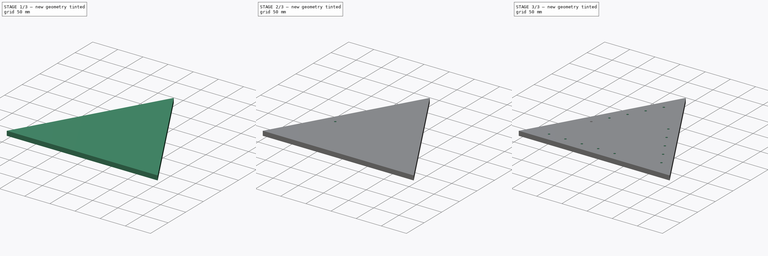
[diagram: build sequence overview — one tinted view per stage of 3, left to right]
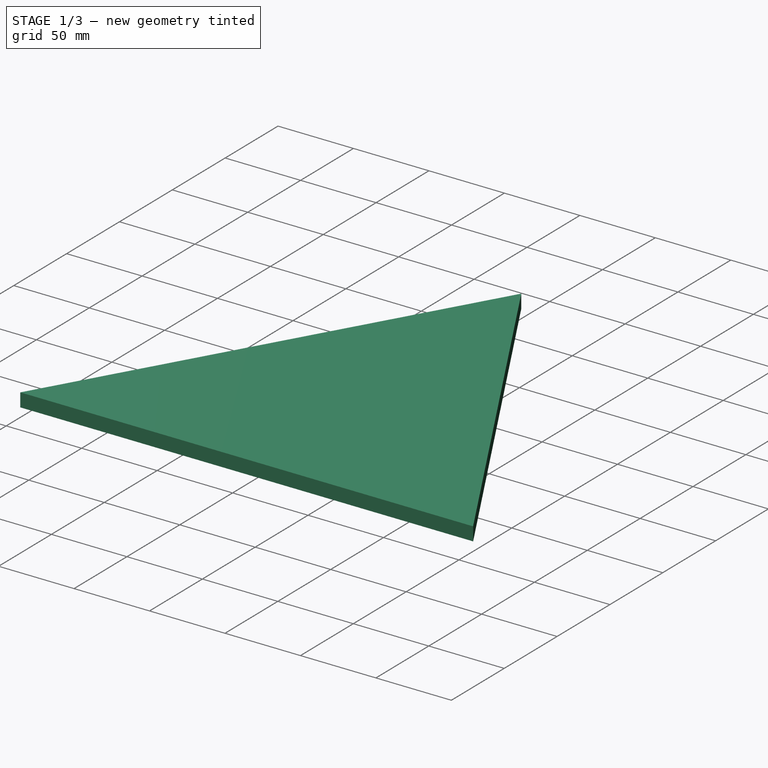
[diagram: stage 1 of 3 — iso view after this stage's code; geometry added in this stage tinted green]
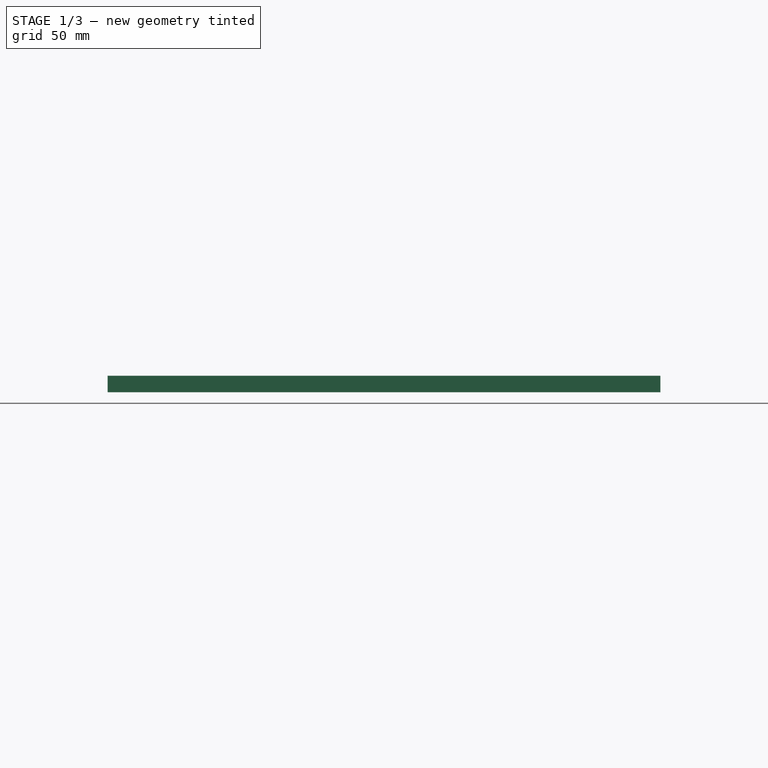
[diagram: stage 1 of 3 — front view after this stage's code; geometry added in this stage tinted green]
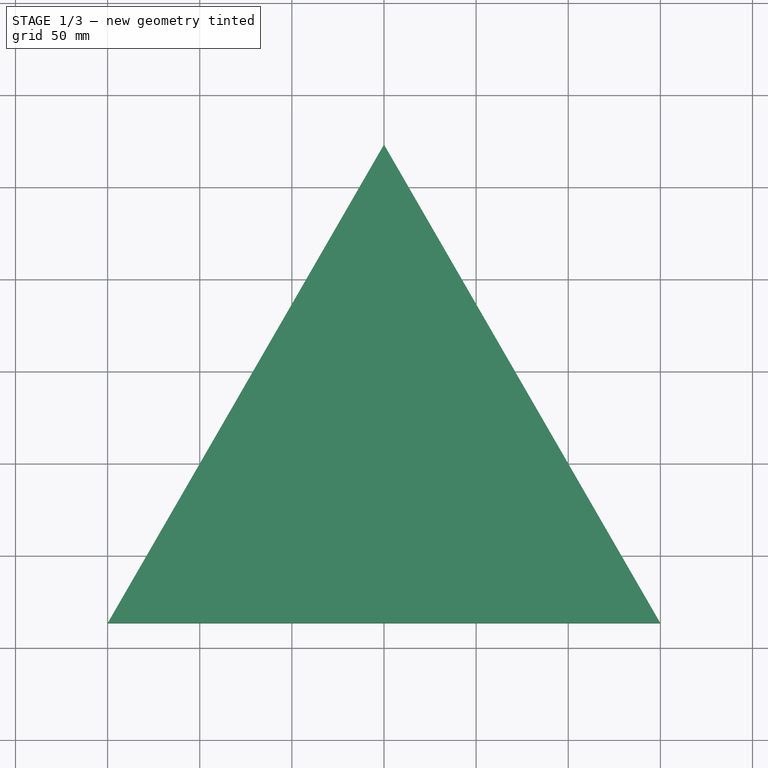
[diagram: stage 1 of 3 — top view after this stage's code; geometry added in this stage tinted green]
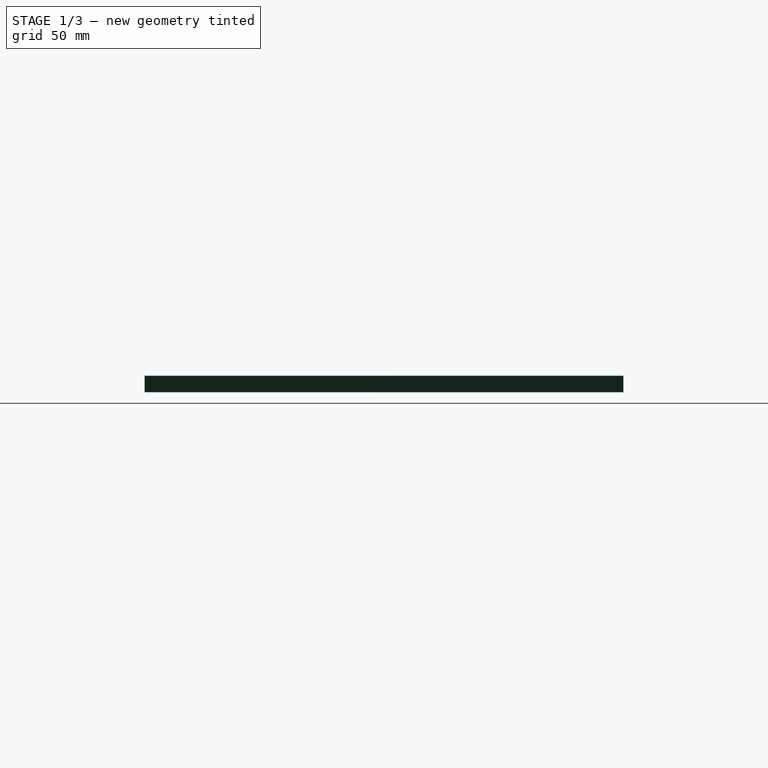
[diagram: stage 1 of 3 — right view after this stage's code; geometry added in this stage tinted green]
FCSTD DOCUMENT  (FreeCAD 1.0R39109 (Git))
Label: Blade_Assembly_FrontTriangle
Comment: Toggle visiblity of BladeTemplates & Rotor_Disk_Back for testing.
License: All rights reserved
LicenseURL: https://en.wikipedia.org/wiki/All_rights_reserved
objects: Sketcher::SketchObject×3, PartDesign::Pocket×2, PartDesign::LinearPattern×2, PartDesign::PolarPattern×2, PartDesign::MultiTransform×2, App::Link×2, Spreadsheet::Sheet×1, PartDesign::Pad×1, PartDesign::Line×1, PartDesign::Body×1, Part::FeaturePython×1
note: 29 computed .brp shape members not serialized (recipe doc carries the construction recipe); baked Part::Feature solids carry a one-line shape summary decoded from their .brp
EXTERNAL_REF file=../Master_of_Puppets.FCStd obj=Blade
EXTERNAL_REF file=../Master_of_Puppets.FCStd obj=Spreadsheet
EXTERNAL_REF file=Blade_Template.FCStd obj=Body
EXTERNAL_REF file=Blade_Assembly_BackDisk.FCStd obj=Body

FEATURE [Spreadsheet::Sheet] Spreadsheet
  cells = A1='Inputs; A2='Spreadsheet; A3='CalculatedWindTurbineShape; B3(CalculatedWindTurbineShape)==Master_of_Puppets#Spreadsheet.CalculatedWindTurbineShape; A4='Blade; A5='HubPitchCircleRadius; B5(HubPitchCircleRadius)==Master_of_Puppets#Blade.HubPitchCircleRadius; A6='HubHolesRadius; B6(HubHolesRadius)==Master_of_Puppets#Blade.HubHolesRadius; A7='BladeAssemblyPlateThickness; B7(BladeAssemblyPlateThickness)==Master_of_Puppets#Blade.BladeAssemblyPlateThickness; A8='BladeAssemblyFrontTriangleSideLength; B8(BladeAssemblyFrontTriangleSideLength)==Master_of_Puppets#Blade.BladeAssemblyFrontTriangleSideLength; A9='ScrewHoleRadius; B9(ScrewHoleRadius)==Master_of_Puppets#Blade.ScrewHoleRadius; A10='BladeTemplateDim_W; B10(BladeTemplateDim_W)==Master_of_Puppets#Blade.BladeTemplateDim_W; A11='BladeTemplateThickness; B11(BladeTemplateThickness)==Master_of_Puppets#Blade.BladeTemplateThickness; A12='DistanceFromCenter; B12(DistanceFromCenter)==Master_of_Puppets#Blade.DistanceFromCenter; A13='TriangleCenterToVertexDistance; B13(TriangleCenterToVertexDistance)==Master_of_Puppets#Blade.TriangleCenterToVertexDistance; A14='HideInnerScrews; B14(HideInnerScrews)==Master_of_Puppets#Blade.HideInnerScrews; A15='InnerScrewLineDistanceFromCenter; B15(InnerScrewLineDistanceFromCenter)==Master_of_Puppets#Blade.InnerScrewLineDistanceFromCenter; A16='OuterScrewLineDistanceFromCenter; B16(OuterScrewLineDistanceFromCenter)==Master_of_Puppets#Blade.OuterScrewLineDistanceFromCenter; A17='Alpha; B17(Alpha)==Master_of_Puppets#Blade.Alpha; A18='BladeTemplateTrailingEdgeAngle; B18(BladeTemplateTrailingEdgeAngle)==Master_of_Puppets#Blade.BladeTemplateTrailingEdgeAngle; A19='InnerScrewHypotenuseOffset; B19(InnerScrewHypotenuseOffset)==Master_of_Puppets#Blade.InnerScrewHypotenuseOffset; C19='OuterScrewHypotenuseOffset; D19(OuterScrewHypotenuseOffset)==Master_of_Puppets#Blade.OuterScrewHypotenuseOffset; A20='InnerScrewLineHypotenuse; B20(InnerScrewLineHypotenuse)==Master_of_Puppets#Blade.InnerScrewLineHypotenuse; C20='OuterScrewLineHypotenuse; D20(OuterScrewLineHypotenuse)==Master_of_Puppets#Blade.OuterScrewLineHypotenuse; A21='NumberOfInnerScrews; B21(NumberOfInnerScrews)==Master_of_Puppets#Blade.NumberOfInnerScrews; C21='NumberOfOuterScrews; D21(NumberOfOuterScrews)==Master_of_Puppets#Blade.NumberOfOuterScrews; A22='Calculated; A23='DistanceBetweenInnerScrews; B23(DistanceBetweenInnerScrews)==InnerScrewLineHypotenuse / (NumberOfInnerScrews + 1); C23='DistanceBetweenOuterScrews; D23(DistanceBetweenOuterScrews)==OuterScrewLineHypotenuse / (NumberOfOuterScrews + 1); A24='InnerScrewLineLength; B24(InnerScrewLineLength)==InnerScrewLineHypotenuse - DistanceBetweenInnerScrews * 2; C24='OuterScrewLineLength; D24(OuterScrewLineLength)==OuterScrewLineHypotenuse - DistanceBetweenOuterScrews * 2; A25='FirstInnerScrewOffset; B25(FirstInnerScrewOffset)==InnerScrewHypotenuseOffset + DistanceBetweenInnerScrews; C25='FirstOuterScrewOffset; D25(FirstOuterScrewOffset)==OuterScrewHypotenuseOffset + DistanceBetweenOuterScrews; A26='BladeTemplatesZ; B26(BladeTemplatesZ)==BladeAssemblyPlateThickness - BladeTemplateThickness; A27='BladeTemplateAngle; B27(BladeTemplateAngle)==90 deg - Alpha; A28='AngleToAlignWithBackDisk; A29='TShapeAngleToAlignWithBackDisk; B29(TShapeAngleToAlignWithBackDisk)==35 deg; A30='HShapeAngleToAlignWithBackDisk; B30(HShapeAngleToAlignWithBackDisk)==48 deg; A31='StarShapeAngleToAlignWithBackDisk; B31(StarShapeAngleToAlignWithBackDisk)==75 deg; A32='AngleToAlignWithBackDisk; B32(AngleToAlignWithBackDisk)==CalculatedWindTurbineShape == <<T>> ? TShapeAngleToAlignWithBackDisk : (CalculatedWindTurbineShape == <<H>> ? HShapeAngleToAlignWithBackDisk : StarShapeAngleToAlignWithBackDisk)
FEATURE [Sketcher::SketchObject] Sketch
  ArcFitTolerance = 0
  AttachmentSupport = -> [XY_Plane]
  FullyConstrained = true
  MakeInternals = false
  MapMode = 5
  expr: Constraints[10] = Spreadsheet.BladeAssemblyFrontTriangleSideLength
  sketch-geometry (4):
    g0: LineSegment StartX=0 StartY=173.205 StartZ=0 EndX=-150 EndY=-86.6025 EndZ=0
    g1: LineSegment StartX=-150 StartY=-86.6025 StartZ=0 EndX=150 EndY=-86.6025 EndZ=0
    g2: LineSegment StartX=150 StartY=-86.6025 StartZ=0 EndX=0 EndY=173.205 EndZ=0
    g3: Circle [constr] CenterX=0 CenterY=0 CenterZ=0 NormalX=0 NormalY=0 NormalZ=1 AngleXU=0 Radius=173.205
  constraints (11):
    c: Coincident(g0,g1)
    c: Coincident(g1,g2)
    c: Coincident(g2,g0)
    c: Equal(g0,g1)
    c: Equal(g0,g2)
    c: PointOnObject(g0,g3)
    c: PointOnObject(g1,g3)
    c: PointOnObject(g2,g3)
    c: Coincident(g3,g-1)
    c: PointOnObject(g2,g-2)
    c: Distance(g2) = 300
FEATURE [PartDesign::Pad] Pad
  Direction = (0,0,1)
  Length = 9
  Length2 = 10
  Profile = -> Sketch
  ReferenceAxis = -> Sketch [N_Axis]
  Suppressed = false
  Type = 0
  expr: Length = Spreadsheet.BladeAssemblyPlateThickness
FEATURE [Sketcher::SketchObject] Sketch001  label="InnerScrewHoleSketch"
  ArcFitTolerance = 0
  AttachmentOffset = pos=(0,0,9) rot=(0,0,1;0rad)
  AttachmentSupport = -> [XY_Plane]
  FullyConstrained = true
  MakeInternals = false
  MapMode = 5
  Placement = pos=(0,0,9) rot=(0,0,1;0rad)
  expr: .AttachmentOffset.Base.z = Spreadsheet.BladeAssemblyPlateThickness
  expr: Constraints[10] = Spreadsheet.TriangleCenterToVertexDistance
  expr: Constraints[12] = Spreadsheet.ScrewHoleRadius
  expr: Constraints[17] = Spreadsheet.InnerScrewLineDistanceFromCenter
  expr: Constraints[21] = Spreadsheet.FirstInnerScrewOffset
  expr: Constraints[23] = Spreadsheet.BladeTemplateTrailingEdgeAngle
  expr: Constraints[5] = Spreadsheet.BladeTemplateDim_W * 2
  expr: Constraints[6] = Spreadsheet.DistanceFromCenter
  sketch-geometry (9):
    g0: LineSegment [constr] StartX=0 StartY=0 StartZ=0 EndX=-71.9362 EndY=-21.2176 EndZ=0
    g1: LineSegment [constr] StartX=0 StartY=0 StartZ=0 EndX=22.9883 EndY=95.2656 EndZ=0
    g2: LineSegment [constr] StartX=22.9883 StartY=95.2656 StartZ=0 EndX=0 EndY=173.205 EndZ=0
    g3: LineSegment [constr] StartX=-71.9362 StartY=-21.2176 StartZ=0 EndX=-106.984 EndY=141.65 EndZ=0
    g4: LineSegment [constr] StartX=-106.984 StartY=141.65 StartZ=0 EndX=0 EndY=173.205 EndZ=0
    g5: LineSegment [constr] StartX=0 StartY=173.205 StartZ=0 EndX=0 EndY=0 EndZ=0
    g6: LineSegment [constr] StartX=-69.5846 StartY=-20.524 StartZ=0 EndX=14.291 EndY=124.753 EndZ=0
    g7: Circle CenterX=-52.8095 CenterY=8.53135 CenterZ=0 NormalX=0 NormalY=0 NormalZ=1 AngleXU=0 Radius=2
    g8: LineSegment [constr] StartX=0 StartY=0 StartZ=0 EndX=-43.3013 EndY=25 EndZ=0
  constraints (26):
    c: Coincident(g1,g0)
    c: Coincident(g2,g1)
    c: PointOnObject(g2,g-2)
    c: Coincident(g3,g0)
    c: Angle(g1,g0) = 2.0944
    c: Distance(g1) = 98
    c: Distance(g0) = 75
    c: Coincident(g4,g3)
    c: Coincident(g4,g2)
    c: Coincident(g5,g2)
    c: Distance(g5) = 173.205
    c: PointOnObject(g7,g6)
    c: Radius(g7) = 2
    c: PointOnObject(g8,g6)
    c: Perpendicular(g6,g8)
    c: Angle(g5,g8) = 1.0472
    c: Coincident(g0,g8)
    c: Distance(g8) = 50
    c: Coincident(g-1,g0)
    c: Coincident(g-1,g5)
    c: PointOnObject(g6,g2)
    c: Distance(g7,g6) = 33.5502
    c: Angle(g2,g1) = 2.61799
    c: Angle(g0,g3) = 1.49594
    c: Parallel(g0,g4)
    c: PointOnObject(g6,g0)
FEATURE [PartDesign::Pocket] Pocket  label="InnerScrewHolePocket"
  BaseFeature = -> Pad
  Direction = (0,0,-1)
  Length = 0
  Length2 = 1
  Profile = -> Sketch001
  ReferenceAxis = -> Sketch001 [N_Axis]
  Suppressed = true
  Type = 1
  expr: Suppressed = Spreadsheet.HideInnerScrews
FEATURE [PartDesign::Line] DatumLine
  AttacherType = Attacher::AttachEngineLine
  AttachmentOffset = pos=(0,9,0) rot=(0,1,0;1.0472rad)
  AttachmentSupport = -> [XY_Plane]
  Length = 20
  MapMode = 16
  Placement = pos=(0,0,9) rot=(0.186157,0.694747,0.694747;2.77349rad)
  ResizeMode = 0
  expr: .AttachmentOffset.Base.y = Spreadsheet.BladeAssemblyPlateThickness
FEATURE [Sketcher::SketchObject] Sketch002  label="OuterScrewHoleSketch"
  ArcFitTolerance = 0
  AttachmentOffset = pos=(0,0,9) rot=(0,0,1;0rad)
  AttachmentSupport = -> [XY_Plane]
  FullyConstrained = true
  MakeInternals = false
  MapMode = 5
  Placement = pos=(0,0,9) rot=(0,0,1;0rad)
  expr: .AttachmentOffset.Base.z = Spreadsheet.BladeAssemblyPlateThickness
  expr: Constraints[10] = Spreadsheet.TriangleCenterToVertexDistance
  expr: Constraints[15] = Spreadsheet.ScrewHoleRadius
  expr: Constraints[17] = Spreadsheet.OuterScrewLineDistanceFromCenter
  expr: Constraints[21] = Spreadsheet.FirstOuterScrewOffset
  expr: Constraints[23] = Spreadsheet.BladeTemplateTrailingEdgeAngle
  expr: Constraints[5] = Spreadsheet.BladeTemplateDim_W * 2
  expr: Constraints[6] = Spreadsheet.DistanceFromCenter
  sketch-geometry (9):
    g0: LineSegment [constr] StartX=0 StartY=0 StartZ=0 EndX=-71.9362 EndY=-21.2176 EndZ=0
    g1: LineSegment [constr] StartX=0 StartY=0 StartZ=0 EndX=22.9883 EndY=95.2656 EndZ=0
    g2: LineSegment [constr] StartX=22.9883 StartY=95.2656 StartZ=0 EndX=0 EndY=173.205 EndZ=0
    g3: LineSegment [constr] StartX=-71.9362 StartY=-21.2176 StartZ=0 EndX=-106.984 EndY=141.65 EndZ=0
    g4: LineSegment [constr] StartX=-106.984 StartY=141.65 StartZ=0 EndX=0 EndY=173.205 EndZ=0
    g5: LineSegment [constr] StartX=0 StartY=173.205 StartZ=0 EndX=0 EndY=0 EndZ=0
    g6: LineSegment [constr] StartX=0 StartY=0 StartZ=0 EndX=-60.6123 EndY=33.5979 EndZ=0
    g7: LineSegment [constr] StartX=-94.7224 StartY=-27.9384 StartZ=0 EndX=5.82541 EndY=153.455 EndZ=0
    g8: Circle CenterX=-73.6164 CenterY=10.1378 CenterZ=0 NormalX=0 NormalY=0 NormalZ=1 AngleXU=0 Radius=2
  constraints (26):
    c: Coincident(g1,g0)
    c: Coincident(g2,g1)
    c: PointOnObject(g2,g-2)
    c: Coincident(g3,g0)
    c: Angle(g1,g0) = 2.0944
    c: Distance(g1) = 98
    c: Distance(g0) = 75
    c: Coincident(g4,g3)
    c: Coincident(g4,g2)
    c: Coincident(g5,g2)
    c: Distance(g5) = 173.205
    c: Coincident(g5,g6)
    c: Angle(g-2,g6) = 1.06465
    c: Perpendicular(g6,g7)
    c: PointOnObject(g8,g7)
    c: Radius(g8) = 2
    c: PointOnObject(g6,g7)
    c: Distance(g6) = 69.3013
    c: Coincident(g5,g0)
    c: Coincident(g5,g-1)
    c: PointOnObject(g7,g2)
    c: Distance(g8,g7) = 43.5347
    c: Angle(g2,g1) = 2.61799
    c: Angle(g0,g3) = 1.49594
    c: Parallel(g4,g0)
    c: PointOnObject(g7,g0)
FEATURE [PartDesign::Pocket] Pocket001  label="OuterScrewHolePocket"
  BaseFeature = -> Pocket
  Direction = (0,0,-1)
  Length = 5
  Length2 = 5
  Profile = -> Sketch002
  ReferenceAxis = -> Sketch002 [N_Axis]
  Suppressed = false
  Type = 1
FEATURE [PartDesign::LinearPattern] LinearPattern
  Direction = -> DatumLine
  Length = 130.294
  Mode = 0
  Occurrences = 5
  Offset = 32.5735
  Suppressed = false
  TransformMode = 0
  expr: Length = Spreadsheet.OuterScrewLineLength
  expr: Occurrences = Spreadsheet.NumberOfOuterScrews
FEATURE [PartDesign::PolarPattern] PolarPattern
  Angle = 360
  Axis = -> Sketch002 [N_Axis]
  Mode = 0
  Occurrences = 3
  Offset = 120
  Suppressed = false
  TransformMode = 0
FEATURE [PartDesign::MultiTransform] MultiTransform  label="OuterScrewHoleMultiTransform"
  BaseFeature = -> Pocket001
  Originals = -> [Pocket001]
  Suppressed = false
  TransformMode = 0
  Transformations = -> [LinearPattern,PolarPattern]
FEATURE [PartDesign::LinearPattern] LinearPattern001
  Direction = -> DatumLine
  Length = 100.651
  Mode = 0
  Occurrences = 4
  Offset = 33.5502
  Suppressed = false
  TransformMode = 0
  expr: Length = Spreadsheet.InnerScrewLineLength
  expr: Occurrences = Spreadsheet.NumberOfInnerScrews
FEATURE [PartDesign::PolarPattern] PolarPattern001
  Angle = 360
  Axis = -> Sketch001 [N_Axis]
  Mode = 0
  Occurrences = 3
  Offset = 120
  Suppressed = false
  TransformMode = 0
FEATURE [PartDesign::MultiTransform] MultiTransform001  label="InnerHoleScrewHoleMultiTransform"
  BaseFeature = -> MultiTransform
  Originals = -> [Pocket]
  Suppressed = true
  TransformMode = 0
  Transformations = -> [LinearPattern001,PolarPattern001]
  expr: Suppressed = Spreadsheet.HideInnerScrews
FEATURE [PartDesign::Body] Body  label="Blade_Assembly_FrontTriangle"
  AllowCompound = false
  Group = -> [Sketch,Pad,Sketch001,Pocket,DatumLine,Sketch002,Pocket001,MultiTransform,LinearPattern,PolarPattern,MultiTransform001,LinearPattern001,PolarPattern001]
  Openafpm_Flat = true
  Origin = -> Origin
  Placement = pos=(0,0,0) rot=(0,0,-1;0.610865rad)
  Tip = -> MultiTransform001
  expr: .Placement.Rotation.Angle = Spreadsheet.AngleToAlignWithBackDisk
FEATURE [App::Link] Link001  label="Blade_Template"
  LinkPlacement = pos=(0,0,0) rot=(0,0,1;0.286818rad)
  LinkedObject = -> <external Blade_Template.FCStd>#Body
  Placement = pos=(0,0,0) rot=(0,0,1;0.286818rad)
  expr: .Placement.Rotation.Angle = Spreadsheet.BladeTemplateAngle
FEATURE [Part::FeaturePython] Array  label="BladeTemplates"  # Draft array (typed FeaturePython)
  AlwaysSyncPlacement = false
  Angle = 360
  ArrayType = 1
  Axis = (0,0,1)
  Base = -> Link001
  Center = (0,0,0)
  Count = 3
  ExpandArray = false
  Fuse = false
  IntervalAxis = (0,0,0)
  IntervalX = (50,0,0)
  IntervalY = (0,50,0)
  IntervalZ = (0,0,50)
  NumberCircles = 3
  NumberPolar = 3
  NumberX = 2
  NumberY = 2
  NumberZ = 1
  Placement = pos=(0,0,3) rot=(0,0,1;0rad)
  PlacementList = 3 placements: [(0,0,0),(0,0,0),(0,0,0)]
  RadialDistance = 50
  ScaleList = (3) [(1,1,1),(1,1,1),(1,1,1)]
  Symmetry = 1
  TangentialDistance = 25
  expr: .Placement.Base.z = Spreadsheet.BladeAssemblyPlateThickness - 6
FEATURE [App::Link] Link002  label="Blade_Assembly_BackDisk"
  LinkedObject = -> <external Blade_Assembly_BackDisk.FCStd>#Body

RESOLVED EXTERNAL PARTS (link-assembly join: the EXTERNAL_REF files above that resolve inside this repo's crawl, each included once):
---- part ../Master_of_Puppets.FCStd = doc fcstd_6404554055c4 (61625 chars; too large to inline — full recipe in that document) ----
---- part Blade_Assembly_BackDisk.FCStd = doc fcstd_c4c851f2121e ----
FCSTD DOCUMENT  (FreeCAD 1.0R39109 (Git))
Label: Blade_Assembly_BackDisk
Comment: Toggle visibility of WoodBoardsAndBladeTemplates and tranparency of Blade_Assembly_BackDisk and Blade_Template for testing.
License: All rights reserved
LicenseURL: https://en.wikipedia.org/wiki/All_rights_reserved
objects: PartDesign::PolarPattern×5, Sketcher::SketchObject×4, PartDesign::Pocket×3, PartDesign::MultiTransform×2, Spreadsheet::Sheet×1, PartDesign::Pad×1, PartDesign::Body×1, App::Link×1, Part::Box×1, App::Part×1, Part::FeaturePython×1
note: 36 computed .brp shape members not serialized (recipe doc carries the construction recipe); baked Part::Feature solids carry a one-line shape summary decoded from their .brp
EXTERNAL_REF file=../Master_of_Puppets.FCStd obj=Alternator
EXTERNAL_REF file=../Master_of_Puppets.FCStd obj=Blade
EXTERNAL_REF file=../Master_of_Puppets.FCStd obj=Hub
EXTERNAL_REF file=../Master_of_Puppets.FCStd obj=Spreadsheet
EXTERNAL_REF file=Blade_Template.FCStd obj=Body

FEATURE [Spreadsheet::Sheet] Spreadsheet
  cells = A1='Inputs; A2='CalculatedWindTurbineShape; B2(CalculatedWindTurbineShape)==Master_of_Puppets#Spreadsheet.CalculatedWindTurbineShape; A3='BladeAssemblyPlateThickness; B3(BladeAssemblyPlateThickness)==Master_of_Puppets#Blade.BladeAssemblyPlateThickness; A4='BladeAssemblyBackDiskDiameter; B4(BladeAssemblyBackDiskDiameter)==Master_of_Puppets#Blade.BladeAssemblyBackDiskDiameter; A5='HubPitchCircleRadius; B5(HubPitchCircleRadius)==Master_of_Puppets#Hub.HubPitchCircleRadius; A6='HubHolesRadius; B6(HubHolesRadius)==Master_of_Puppets#Hub.HubHolesRadius; A7='NumberOfHoles; B7(NumberOfHoles)==Master_of_Puppets#Hub.NumberOfHoles; A8='ScrewHoleRadius; B8(ScrewHoleRadius)==Master_of_Puppets#Alternator.ScrewHoleRadius; A9='NumberOfBackDiskScrewsPerBlade; B9(NumberOfBackDiskScrewsPerBlade)==Master_of_Puppets#Blade.NumberOfBackDiskScrewsPerBlade; A10='BladeTemplateThickness; B10(BladeTemplateThickness)==Master_of_Puppets#Blade.BladeTemplateThickness; A11='RotorTopology; B11(RotorTopology)==Master_of_Puppets#Spreadsheet.RotorTopology; A12='BladeWidth; B12(BladeWidth)==Master_of_Puppets#Spreadsheet.BladeWidth; A13='BladeTemplateDim_W; B13(BladeTemplateDim_W)==Master_of_Puppets#Blade.BladeTemplateDim_W; A14='BladeRadius; B14(BladeRadius)==Master_of_Puppets#Blade.BladeRadius; A15='Static; A16='BladeAssemblyBackDiskCentralHoleDiameter; B16(BladeAssemblyBackDiskCentralHoleDiameter)==RotorTopology == <<Single>> ? ScrewHoleRadius * 2 : 12; C16='Central hole is to see if the blades touch in the center during the assembly.; A17='Calculated; A18='NumberOfInnerScrews; B18(NumberOfInnerScrews)==round(NumberOfBackDiskScrewsPerBlade * 0.43); A19='NumberOfOuterScrews; B19(NumberOfOuterScrews)==NumberOfBackDiskScrewsPerBlade - NumberOfInnerScrews; A20='TShapeAngleOffset; B20(TShapeAngleOffset)==45 deg; A21='HShapeAngleOffset; B21(HShapeAngleOffset)==270 deg; A22='StarShapeAngleOffset; B22(StarShapeAngleOffset)==0 deg; A23='AngleOffset; B23(AngleOffset)==CalculatedWindTurbineShape == <<T>> ? TShapeAngleOffset : (CalculatedWindTurbineShape == <<H>> ? HShapeAngleOffset : StarShapeAngleOffset); A24='BladeAssemblyBackDiskCentralHoleRadius; B24(BladeAssemblyBackDiskCentralHoleRadius)==BladeAssemblyBackDiskCentralHoleDiameter / 2; A25='BladeAssemblyBackDiskRadius; B25(BladeAssemblyBackDiskRadius)==BladeAssemblyBackDiskDiameter / 2; A26='DistanceBetweenScrewHolesCircumradii; B26(DistanceBetweenScrewHolesCircumradii)==(BladeAssemblyBackDiskRadius - ScrewHoleRadius - (HubPitchCircleRadius + HubHolesRadius)) / 3; A27='InnerScrewHolesCircumradius; B27(InnerScrewHolesCircumradius)==HubPitchCircleRadius + HubHolesRadius + DistanceBetweenScrewHolesCircumradii; A28='OuterScrewHolesCircumradius; B28(OuterScrewHolesCircumradius)==InnerScrewHolesCircumradius + ScrewHoleRadius + DistanceBetweenScrewHolesCircumradii; A29='BladeAngle; B29(BladeAngle)==120 deg; C29='Assume 3 blades; A30='AngleBetweenInnerScrewHoles; B30(AngleBetweenInnerScrewHoles)==BladeAngle / (NumberOfInnerScrews + 1); A31='AngleBetweenOuterScrewHoles; B31(AngleBetweenOuterScrewHoles)==BladeAngle / (NumberOfOuterScrews + 1); A32='BladeTemplateAngle; A33='TShapeBladeTemplateAngle; B33(TShapeBladeTemplateAngle)==-15 deg; A34='HShapeBladeTemplateAngle; B34(HShapeBladeTemplateAngle)==-30 deg; A35='StarShapeBladeTemplateAngle; B35(StarShapeBladeTemplateAngle)==-60 deg; A36='BladeTemplateAngle; B36(BladeTemplateAngle)==CalculatedWindTurbineShape == <<T>> ? TShapeBladeTemplateAngle : (CalculatedWindTurbineShape == <<H>> ? HShapeBladeTemplateAngle : StarShapeBladeTemplateAngle); A37='Z; A38='BladeTemplateZ; B38(BladeTemplateZ)==-BladeTemplateThickness; A39='WoodZ; B39(WoodZ)==BladeTemplateZ - BladeAssemblyPlateThickness; A40='Decrease number of screws to handle when blade width is less than the maximum; A41='RootAngle; B41(RootAngle)==60 deg; A42='WoodX; B42(WoodX)==BladeTemplateDim_W - BladeWidth; A43='DistanceOfScrewEdge; B43(DistanceOfScrewEdge)=20; A44='ScrewBoundaryX; B44(ScrewBoundaryX)==WoodX + DistanceOfScrewEdge; A45='WoodYOuterScrewHolesCircumradiusIntersection; B45(WoodYOuterScrewHolesCircumradiusIntersection)==sqrt(OuterScrewHolesCircumradius ^ 2 - ScrewBoundaryX ^ 2); C45='WoodYInnerScrewHolesCircumradiusIntersection; D45(WoodYInnerScrewHolesCircumradiusIntersection)==sqrt(InnerScrewHolesCircumradius ^ 2 - ScrewBoundaryX ^ 2); A46='WoodOuterScrewHolesCircumradiusIntersectionAngle; B46(WoodOuterScrewHolesCircumradiusIntersectionAngle)==ScrewBoundaryX < -OuterScrewHolesCircumradius ? BladeAngle : 180 deg + atan(WoodYOuterScrewHolesCircumradiusIntersection / WoodX) - RootAngle; C46='WoodInnerScrewHolesCircumradiusIntersectionAngle; D46(WoodInnerScrewHolesCircumradiusIntersectionAngle)==ScrewBoundaryX < -InnerScrewHolesCircumradius ? BladeAngle : 180 deg + atan(WoodYInnerScrewHolesCircumradiusIntersection / WoodX) - RootAngle; A47='AngleBetweenOuterScrewHolesAdjustedForBladeWidth; B47(AngleBetweenOuterScrewHolesAdjustedForBladeWidth)==WoodOuterScrewHolesCircumradiusIntersectionAngle / (NumberOfOuterScrews + 1); C47='AngleBetweenInnerScrewHolesAdjustedForBladeWidth; D47(AngleBetweenInnerScrewHolesAdjustedForBladeWidth)==WoodInnerScrewHolesCircumradiusIntersectionAngle / (NumberOfInnerScrews + 1); A48='OuterScrewsAngleAdjustedForBladeWidth; B48(OuterScrewsAngleAdjustedForBladeWidth)==AngleBetweenOuterScrewHolesAdjustedForBladeWidth * (NumberOfOuterScrews - 1); C48='InnerScrewsAngleAdjustedForBladeWidth; D48(InnerScrewsAngleAdjustedForBladeWidth)==AngleBetweenInnerScrewHolesAdjustedForBladeWidth * (NumberOfInnerScrews - 1)
FEATURE [Sketcher::SketchObject] Sketch
  ArcFitTolerance = 0
  AttachmentSupport = -> [XY_Plane]
  FullyConstrained = true
  MakeInternals = false
  MapMode = 5
  expr: Constraints[2] = Spreadsheet.BladeAssemblyBackDiskCentralHoleRadius
  expr: Constraints[3] = Spreadsheet.BladeAssemblyBackDiskRadius
  sketch-geometry (2):
    g0: Circle CenterX=0 CenterY=0 CenterZ=0 NormalX=0 NormalY=0 NormalZ=1 AngleXU=0 Radius=125.5
    g1: Circle CenterX=0 CenterY=0 CenterZ=0 NormalX=0 NormalY=0 NormalZ=1 AngleXU=0 Radius=6
  constraints (4):
    c: Coincident(g0,g-1)
    c: Coincident(g1,g0)
    c: Radius(g1) = 6
    c: Radius(g0) = 125.5
FEATURE [PartDesign::Pad] Pad
  Direction = (0,0,1)
  Length = 12
  Length2 = 10
  Profile = -> Sketch
  ReferenceAxis = -> Sketch [N_Axis]
  Suppressed = false
  Type = 0
  expr: Length = Spreadsheet.BladeAssemblyPlateThickness
FEATURE [Sketcher::SketchObject] Sketch001  label="HubHoleSketch"
  ArcFitTolerance = 0
  AttachmentSupport = -> [XY_Plane]
  FullyConstrained = true
  MakeInternals = false
  MapMode = 5
  Placement = pos=(0,0,0) rot=(0,1,0;3.14159rad)
  expr: Constraints[1] = Spreadsheet.HubHolesRadius
  expr: Constraints[2] = Spreadsheet.HubPitchCircleRadius
  sketch-geometry (1):
    g0: Circle CenterX=0 CenterY=50 CenterZ=0 NormalX=0 NormalY=0 NormalZ=1 AngleXU=0 Radius=6
  constraints (3):
    c: PointOnObject(g0,g-2)
    c: Radius(g0) = 6
    c: DistanceY(g-1,g0) = 50
FEATURE [PartDesign::Pocket] Pocket  label="HubHolePocket"
  BaseFeature = -> Pad
  Direction = (0,0,1)
  Length = 5
  Length2 = 5
  Profile = -> Sketch001
  ReferenceAxis = -> Sketch001 [N_Axis]
  Suppressed = false
  Type = 1
FEATURE [PartDesign::Body] Body  label="Blade_Assembly_BackDisk"
  AllowCompound = false
  Group = -> [Sketch,Pad,Sketch001,Pocket,PolarPattern,Sketch003,Pocket001,Sketch004,Pocket002,MultiTransform,PolarPattern002,PolarPattern003,MultiTransform001,PolarPattern004,PolarPattern005]
  Openafpm_Flat = true
  Origin = -> Origin
  Tip = -> MultiTransform001
FEATURE [App::Link] Link  label="Blade_Template"
  LinkPlacement = pos=(0,0,-6) rot=(0,0,1;0rad)
  LinkedObject = -> <external Blade_Template.FCStd>#Body
  Placement = pos=(0,0,-6) rot=(0,0,1;0rad)
  expr: .Placement.Base.z = Spreadsheet.BladeTemplateZ
FEATURE [Part::Box] Box  label="Wood"
  AttacherType = Attacher::AttachEngine3D
  Height = 12
  Length = 160
  Placement = pos=(-104,0,-18) rot=(0,0,1;0rad)
  Width = 1200
  expr: .Placement.Base.x = Spreadsheet.WoodX
  expr: .Placement.Base.z = Spreadsheet.WoodZ
  expr: Height = Spreadsheet.BladeAssemblyPlateThickness
  expr: Length = Spreadsheet.BladeWidth
  expr: Width = Spreadsheet.BladeRadius
FEATURE [App::Part] Part
  Group = -> [Box,Link]
  Origin = -> Origin001
  Placement = pos=(0,0,0) rot=(0,0,1;-0.261799rad)
  expr: .Placement.Rotation.Angle = Spreadsheet.BladeTemplateAngle
FEATURE [Part::FeaturePython] Array  label="WoodBoardsAndBladeTemplates"  # Draft array (typed FeaturePython)
  AlwaysSyncPlacement = false
  Angle = 360
  ArrayType = 1
  Axis = (0,0,1)
  Base = -> Part
  Center = (0,0,0)
  Count = 3
  ExpandArray = false
  Fuse = false
  IntervalAxis = (0,0,0)
  IntervalX = (50,0,0)
  IntervalY = (0,50,0)
  IntervalZ = (0,0,50)
  NumberCircles = 3
  NumberPolar = 3
  NumberX = 2
  NumberY = 2
  NumberZ = 1
  PlacementList = 3 placements: [(0,0,0),(0,0,0),(0,0,0)]
  RadialDistance = 50
  ScaleList = (3) [(1,1,1),(1,1,1),(1,1,1)]
  Symmetry = 1
  TangentialDistance = 25
---- part Blade_Template.FCStd = doc fcstd_a136995ec3d8 ----
FCSTD DOCUMENT  (FreeCAD 0.21R33771 (Git))
Label: Blade_Template
License: All rights reserved
LicenseURL: https://en.wikipedia.org/wiki/All_rights_reserved
objects: Spreadsheet::Sheet×1, Sketcher::SketchObject×1, PartDesign::Pad×1, PartDesign::Body×1
note: 4 computed .brp shape members not serialized (recipe doc carries the construction recipe); baked Part::Feature solids carry a one-line shape summary decoded from their .brp
EXTERNAL_REF file=../Master_of_Puppets.FCStd obj=Blade

FEATURE [Spreadsheet::Sheet] Spreadsheet
  cells = A1='Inputs; A2='BladeRadius; B2(BladeRadius)==Master_of_Puppets#Blade.BladeRadius; A3='BladeTemplateDim_V; B3(BladeTemplateDim_V)==Master_of_Puppets#Blade.BladeTemplateDim_V; A4='BladeTemplateDim_W; B4(BladeTemplateDim_W)==Master_of_Puppets#Blade.BladeTemplateDim_W; A5='BladeTemplateThickness; B5(BladeTemplateThickness)==Master_of_Puppets#Blade.BladeTemplateThickness
FEATURE [Sketcher::SketchObject] Sketch
  FullyConstrained = true
  MapMode = 5
  Support = -> [XY_Plane]
  expr: Constraints[12] = Spreadsheet.BladeTemplateDim_V
  expr: Constraints[5] = Spreadsheet.BladeTemplateDim_W
  expr: Constraints[6] = Spreadsheet.BladeRadius
  expr: Constraints[7] = Spreadsheet.BladeTemplateDim_W
  sketch-geometry (5):
    g0: LineSegment StartX=0 StartY=0 StartZ=0 EndX=35 EndY=60.6218 EndZ=0
    g1: LineSegment StartX=35 StartY=60.6218 StartZ=0 EndX=35 EndY=600 EndZ=0
    g2: LineSegment StartX=35 StartY=600 StartZ=0 EndX=0 EndY=600 EndZ=0
    g3: LineSegment StartX=0 StartY=600 StartZ=0 EndX=-105 EndY=0 EndZ=0
    g4: LineSegment StartX=-105 StartY=0 StartZ=0 EndX=0 EndY=0 EndZ=0
  constraints (14):
    c: Coincident(g0,g1)
    c: Vertical(g1)
    c: Coincident(g1,g2)
    c: Horizontal(g2)
    c: Coincident(g2,g3)
    c: DistanceX(g2,g1) = 35
    c: DistanceY(g0,g1) = 600
    c: DistanceX(g0,g0) = 35
    c: Coincident(g4,g3)
    c: Coincident(g4,g0)
    c: Horizontal(g4)
    c: Coincident(g0,g-1)
    c: DistanceX(g3,g0) = 140
    c: Angle(g0,g4) = 2.0944
FEATURE [PartDesign::Pad] Pad
  Direction = (0,0,1)
  Length = 6
  Length2 = 10
  Profile = -> Sketch
  ReferenceAxis = -> Sketch [N_Axis]
  Type = 0
  expr: Length = Spreadsheet.BladeTemplateThickness
FEATURE [PartDesign::Body] Body  label="Blade_Template"
  Group = -> [Sketch,Pad]
  Openafpm_Flat = true
  Origin = -> Origin
  Tip = -> Pad
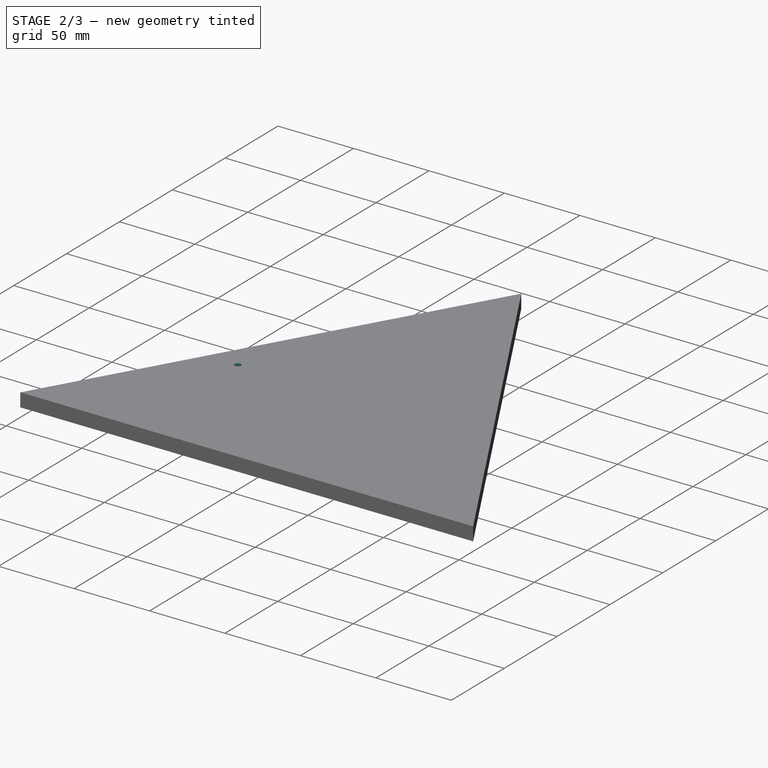
[diagram: stage 2 of 3 — iso view after this stage's code; geometry added in this stage tinted green]
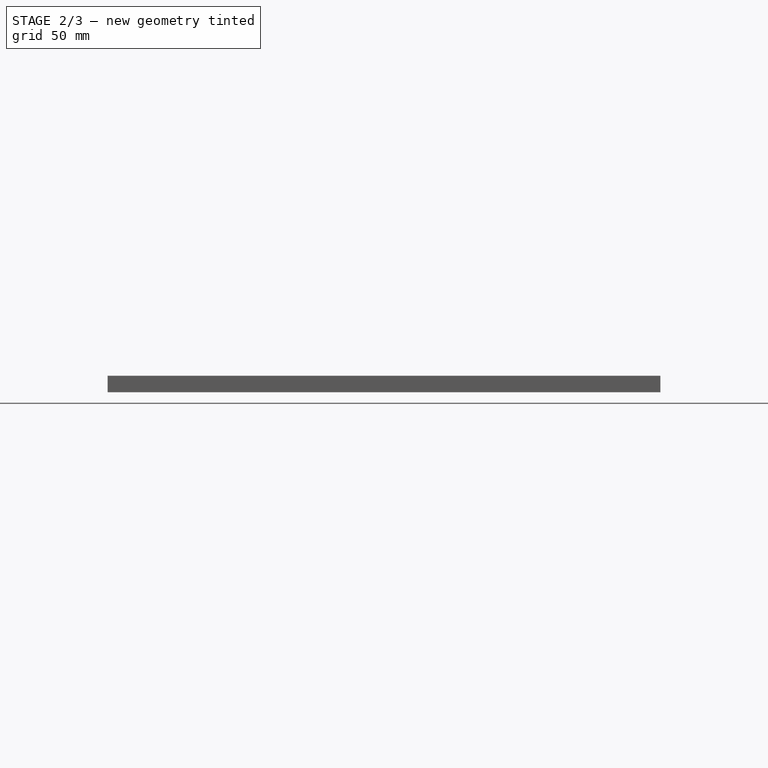
[diagram: stage 2 of 3 — front view after this stage's code; geometry added in this stage tinted green]
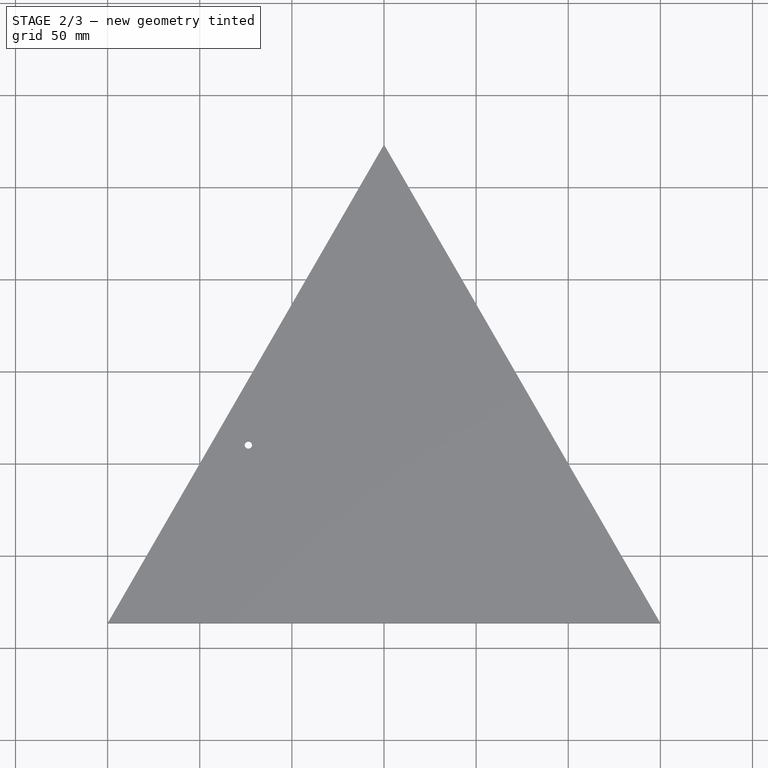
[diagram: stage 2 of 3 — top view after this stage's code; geometry added in this stage tinted green]
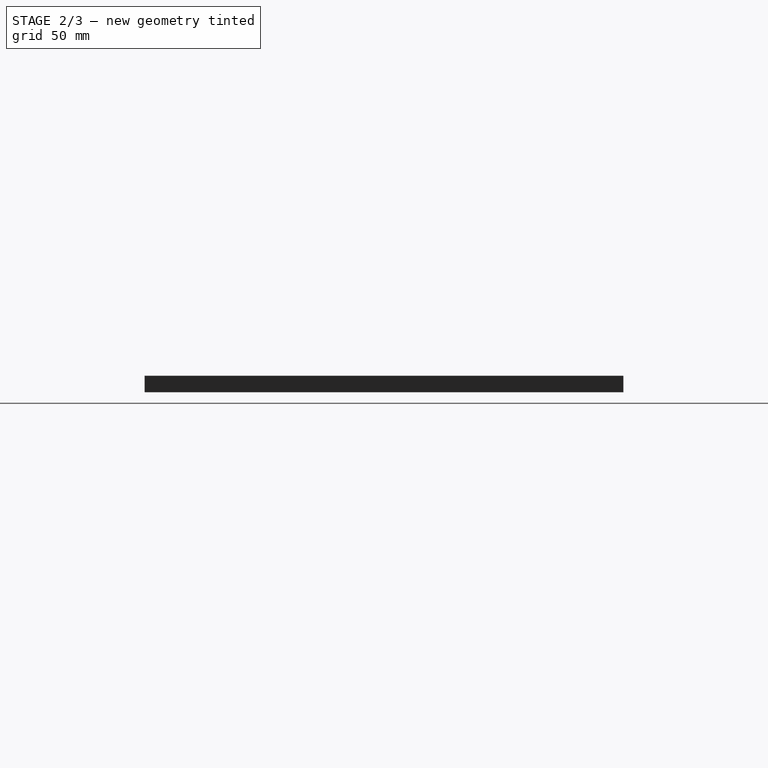
[diagram: stage 2 of 3 — right view after this stage's code; geometry added in this stage tinted green]
FEATURE [PartDesign::PolarPattern] PolarPattern  label="HubHolePolarPattern"
  Angle = 360
  Axis = -> Sketch001 [N_Axis]
  BaseFeature = -> Pocket
  Mode = 0
  Occurrences = 4
  Offset = 120
  Originals = -> [Pocket]
  Suppressed = false
  TransformMode = 0
  expr: Occurrences = Spreadsheet.NumberOfHoles
FEATURE [Sketcher::SketchObject] Sketch003  label="InnerScrewHoleSketch"
  ArcFitTolerance = 0
  AttachmentOffset = pos=(0,0,12) rot=(0,0,1;0rad)
  AttachmentSupport = -> [XY_Plane]
  FullyConstrained = true
  MakeInternals = false
  MapMode = 5
  Placement = pos=(0,0,12) rot=(0,0,1;0rad)
  expr: .AttachmentOffset.Base.z = Spreadsheet.BladeAssemblyPlateThickness
  expr: Constraints[0] = Spreadsheet.ScrewHoleRadius
  expr: Constraints[11] = Spreadsheet.AngleBetweenInnerScrewHolesAdjustedForBladeWidth
  expr: Constraints[2] = Spreadsheet.BladeAssemblyBackDiskRadius
  expr: Constraints[5] = Spreadsheet.AngleOffset
  expr: Constraints[7] = Spreadsheet.InnerScrewHolesCircumradius
  sketch-geometry (5):
    g0: Circle CenterX=28.1319 CenterY=73.2861 CenterZ=0 NormalX=0 NormalY=0 NormalZ=1 AngleXU=0 Radius=2
    g1: Circle [constr] CenterX=0 CenterY=0 CenterZ=0 NormalX=0 NormalY=0 NormalZ=1 AngleXU=0 Radius=125.5
    g2: LineSegment [constr] StartX=0 StartY=0 StartZ=0 EndX=88.7419 EndY=88.7419 EndZ=0
    g3: Circle [constr] CenterX=0 CenterY=0 CenterZ=0 NormalX=0 NormalY=0 NormalZ=1 AngleXU=0 Radius=78.5
    g4: LineSegment [constr] StartX=0 StartY=0 StartZ=0 EndX=28.1319 EndY=73.2861 EndZ=0
  constraints (12):
    c: Radius(g0) = 2
    c: Coincident(g1,g-1)
    c: Radius(g1) = 125.5
    c: Coincident(g2,g1)
    c: PointOnObject(g2,g1)
    c: Angle(g-1,g2) = 0.785398
    c: Coincident(g3,g1)
    c: Radius(g3) = 78.5
    c: PointOnObject(g0,g3)
    c: Coincident(g4,g1)
    c: Coincident(g4,g0)
    c: Angle(g2,g4) = 0.418879
FEATURE [PartDesign::Pocket] Pocket001  label="InnerScrewHolePocket"
  BaseFeature = -> PolarPattern
  Direction = (0,0,-1)
  Length = 5
  Length2 = 5
  Profile = -> Sketch003
  ReferenceAxis = -> Sketch003 [N_Axis]
  Suppressed = false
  Type = 1
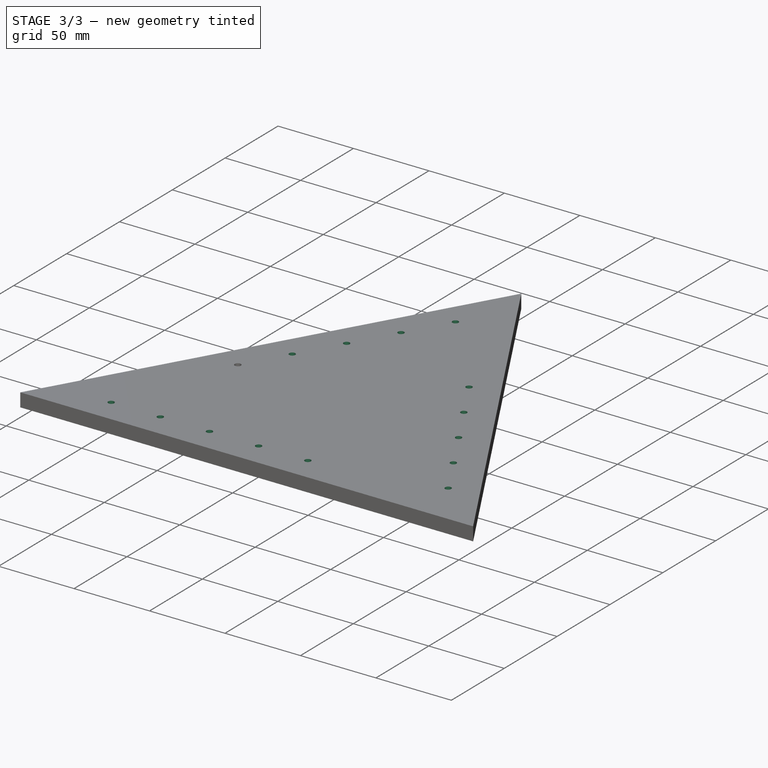
[diagram: stage 3 of 3 — iso view after this stage's code; geometry added in this stage tinted green]
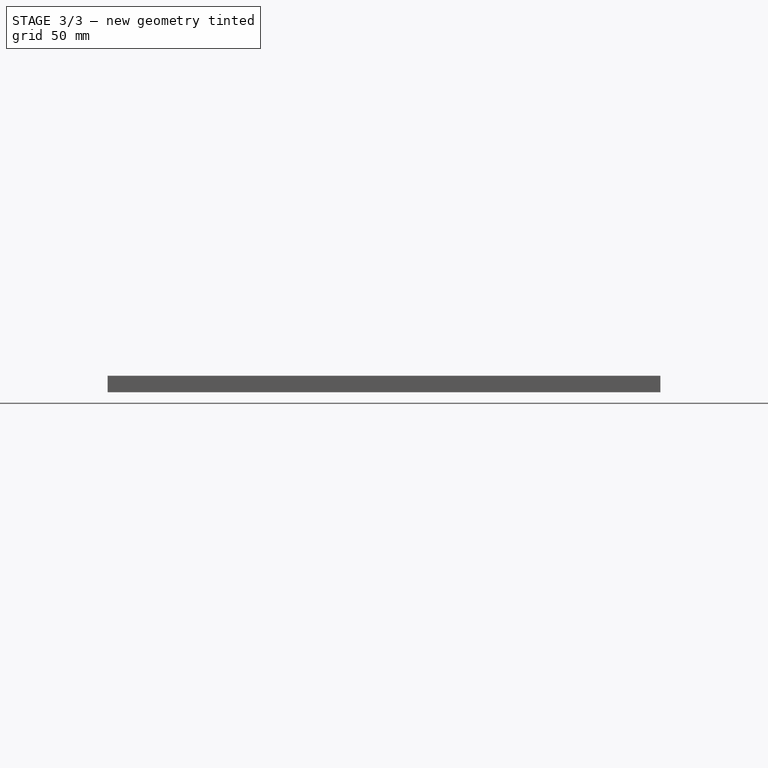
[diagram: stage 3 of 3 — front view after this stage's code; geometry added in this stage tinted green]
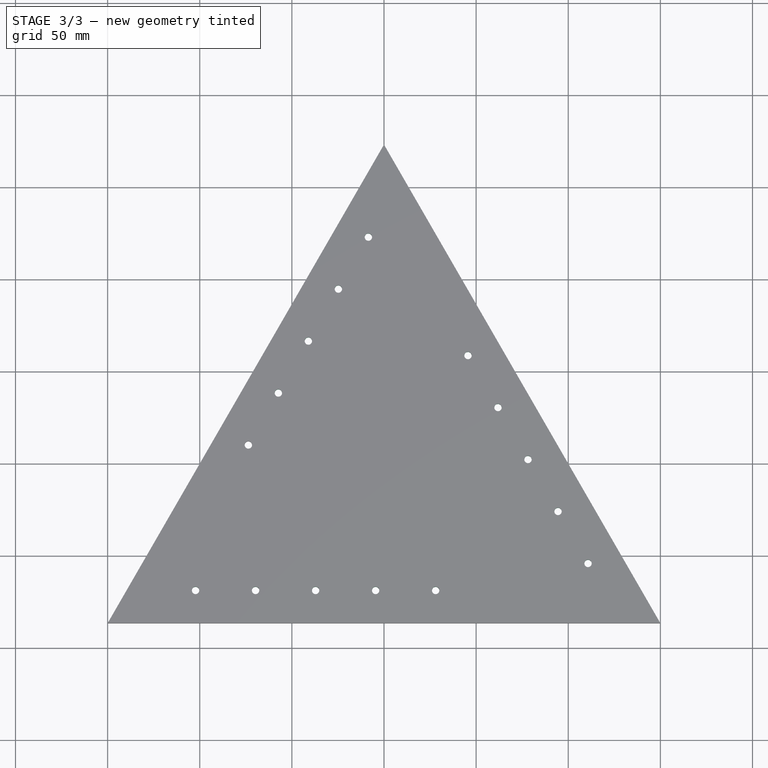
[diagram: stage 3 of 3 — top view after this stage's code; geometry added in this stage tinted green]
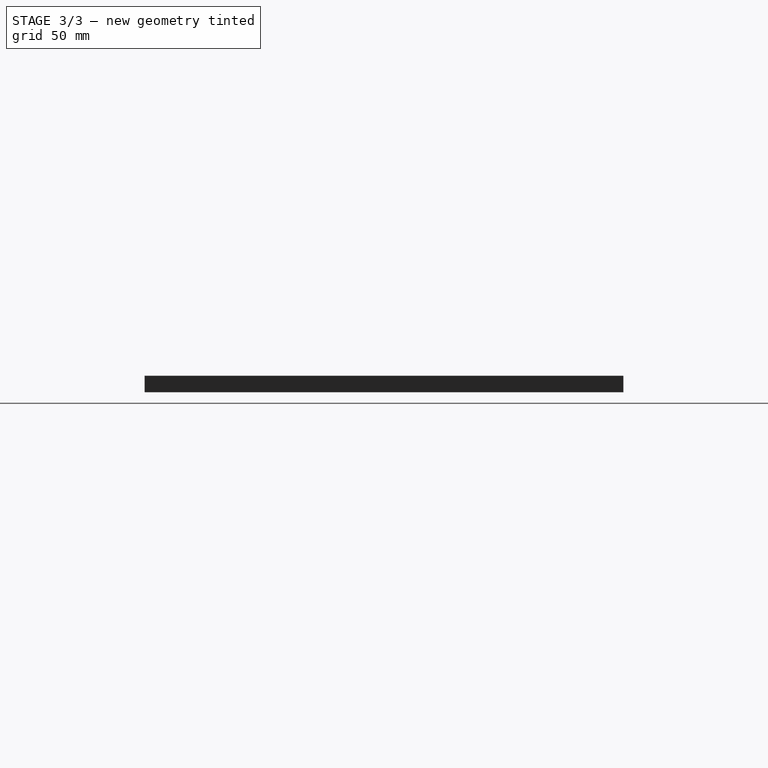
[diagram: stage 3 of 3 — right view after this stage's code; geometry added in this stage tinted green]
FEATURE [Sketcher::SketchObject] Sketch004  label="OuterScrewHoleSketch"
  ArcFitTolerance = 0
  AttachmentOffset = pos=(0,0,12) rot=(0,0,1;0rad)
  AttachmentSupport = -> [XY_Plane]
  FullyConstrained = true
  MakeInternals = false
  MapMode = 5
  Placement = pos=(0,0,12) rot=(0,0,1;0rad)
  expr: .AttachmentOffset.Base.z = Spreadsheet.BladeAssemblyPlateThickness
  expr: Constraints[11] = Spreadsheet.ScrewHoleRadius
  expr: Constraints[1] = Spreadsheet.BladeAssemblyBackDiskRadius
  expr: Constraints[4] = Spreadsheet.AngleOffset
  expr: Constraints[5] = Spreadsheet.OuterScrewHolesCircumradius
  expr: Constraints[7] = Spreadsheet.AngleBetweenOuterScrewHolesAdjustedForBladeWidth
  sketch-geometry (5):
    g0: Circle [constr] CenterX=0 CenterY=0 CenterZ=0 NormalX=0 NormalY=0 NormalZ=1 AngleXU=0 Radius=125.5
    g1: LineSegment [constr] StartX=0 StartY=0 StartZ=0 EndX=88.7419 EndY=88.7419 EndZ=0
    g2: Circle [constr] CenterX=0 CenterY=0 CenterZ=0 NormalX=0 NormalY=0 NormalZ=1 AngleXU=0 Radius=103
    g3: LineSegment [constr] StartX=0 StartY=0 StartZ=0 EndX=51.453 EndY=89.2277 EndZ=0
    g4: Circle CenterX=51.453 CenterY=89.2277 CenterZ=0 NormalX=0 NormalY=0 NormalZ=1 AngleXU=0 Radius=2
  constraints (12):
    c: Coincident(g0,g-1)
    c: Radius(g0) = 125.5
    c: Coincident(g1,g0)
    c: PointOnObject(g1,g0)
    c: Angle(g-1,g1) = 0.785398
    c: Radius(g2) = 103
    c: PointOnObject(g3,g2)
    c: Angle(g1,g3) = 0.262326
    c: Coincident(g3,g0)
    c: Coincident(g2,g0)
    c: Coincident(g4,g3)
    c: Radius(g4) = 2
FEATURE [PartDesign::Pocket] Pocket002  label="OuterScrewHolePocket"
  BaseFeature = -> Pocket001
  Direction = (0,0,-1)
  Length = 5
  Length2 = 5
  Profile = -> Sketch004
  ReferenceAxis = -> Sketch004 [N_Axis]
  Suppressed = false
  Type = 1
FEATURE [PartDesign::PolarPattern] PolarPattern002  label="OuterScrewHolePolarPattern"
  Angle = 60.1207
  Axis = -> Sketch004 [N_Axis]
  Mode = 0
  Occurrences = 5
  Offset = 120
  Suppressed = false
  TransformMode = 0
  expr: Angle = Spreadsheet.OuterScrewsAngleAdjustedForBladeWidth
  expr: Occurrences = Spreadsheet.NumberOfOuterScrews
FEATURE [PartDesign::PolarPattern] PolarPattern003  label="OuterScrewHolesPolarPattern"
  Angle = 360
  Axis = -> Sketch004 [N_Axis]
  Mode = 0
  Occurrences = 3
  Offset = 120
  Suppressed = false
  TransformMode = 0
FEATURE [PartDesign::MultiTransform] MultiTransform  label="OuterScrewHolePolarPatterns"
  BaseFeature = -> Pocket002
  Originals = -> [Pocket002]
  Suppressed = false
  TransformMode = 0
  Transformations = -> [PolarPattern002,PolarPattern003]
FEATURE [PartDesign::PolarPattern] PolarPattern004  label="InnerScrewHolePolarPattern"
  Angle = 72
  Axis = -> Sketch003 [N_Axis]
  Mode = 0
  Occurrences = 4
  Offset = 120
  Suppressed = false
  TransformMode = 0
  expr: Angle = Spreadsheet.InnerScrewsAngleAdjustedForBladeWidth
  expr: Occurrences = Spreadsheet.NumberOfInnerScrews
FEATURE [PartDesign::PolarPattern] PolarPattern005  label="InnerScrewHolesPolarPattern"
  Angle = 360
  Axis = -> Sketch003 [N_Axis]
  Mode = 0
  Occurrences = 3
  Offset = 120
  Suppressed = false
  TransformMode = 0
FEATURE [PartDesign::MultiTransform] MultiTransform001  label="InnerScrewHolePolarPatterns"
  BaseFeature = -> MultiTransform
  Originals = -> [Pocket001]
  Suppressed = false
  TransformMode = 0
  Transformations = -> [PolarPattern004,PolarPattern005]
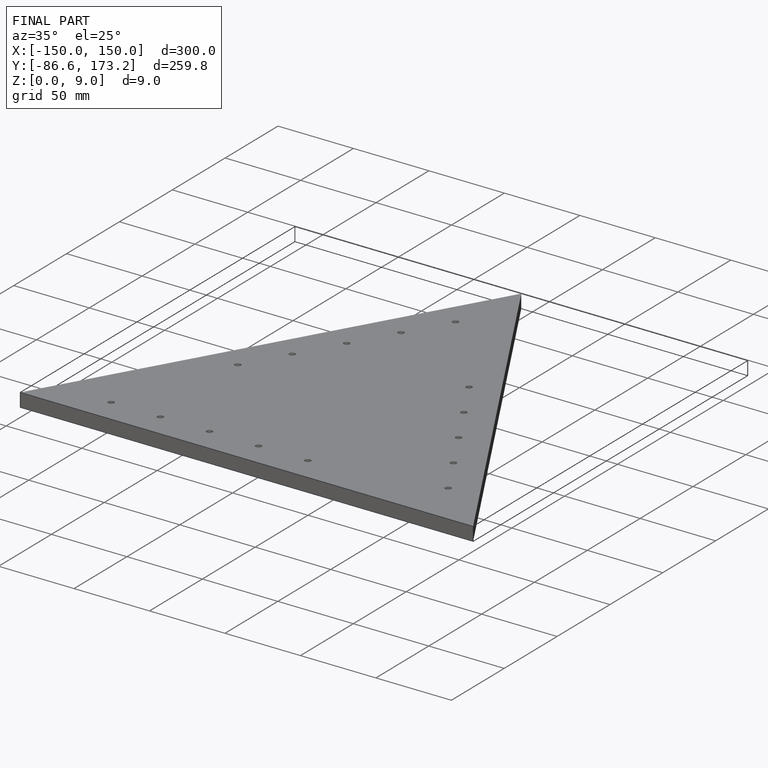
[diagram: finished part — iso view with bounding-box wireframe]
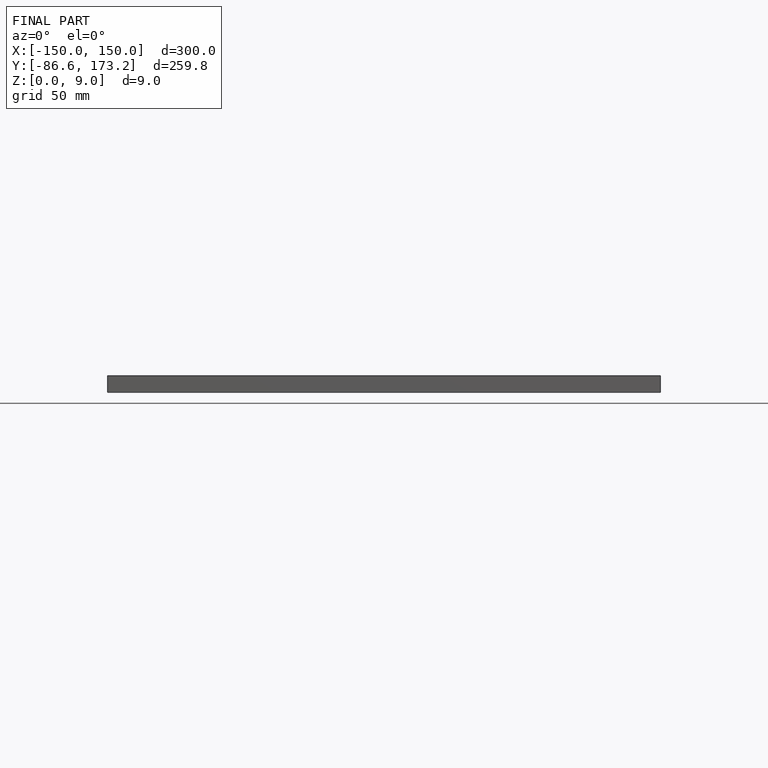
[diagram: finished part — front view with bounding-box wireframe]
